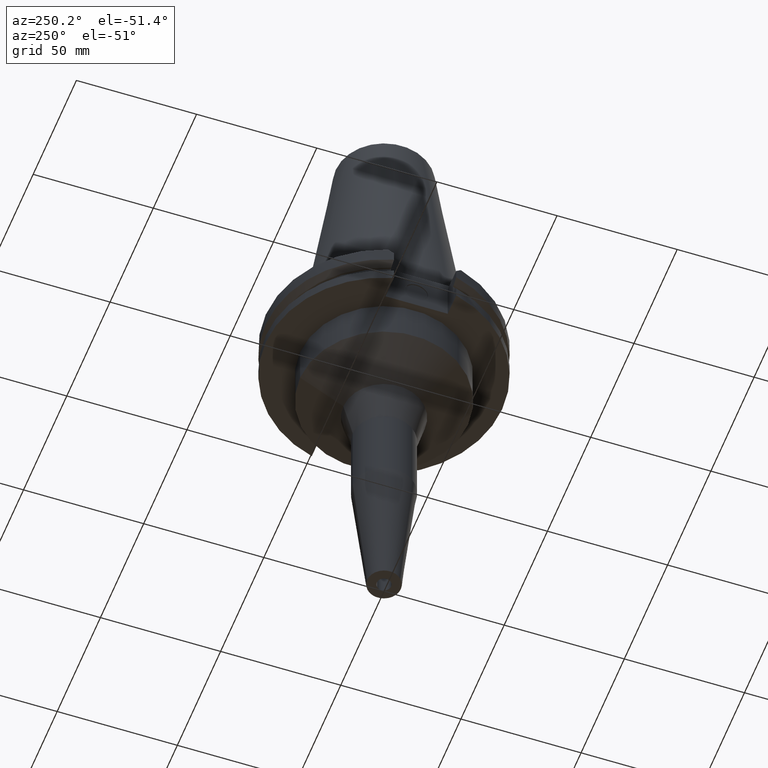
[diagram: clean part render]
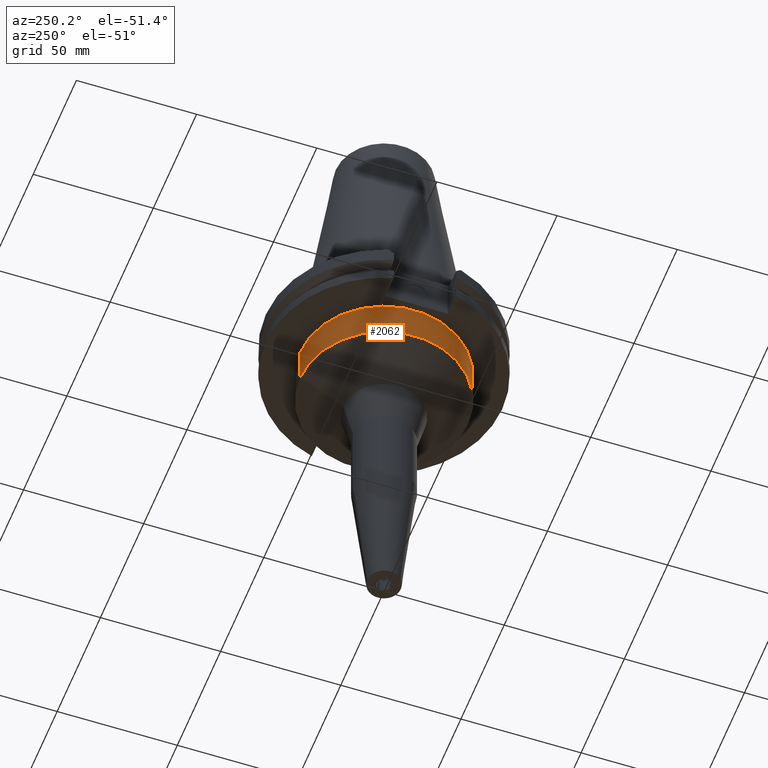
[diagram: same view with one face highlighted and labeled with its STEP entity id]
A machine part, auxiliary view. The second image highlights one B-rep face of the part: STEP entity #2062.
In plain terms, the highlighted cylindrical surface (partial cylindrical patch) has radius 34.925 mm, axis along (0, 0, -1).
Its self-contained STEP definition (entity closure, byte-faithful):
#251=CARTESIAN_POINT('',(0.E0,1.398301715266E-14,-1.905E1));
#252=DIRECTION('',(0.E0,0.E0,-1.E0));
#253=DIRECTION('',(0.E0,-1.E0,0.E0));
#254=AXIS2_PLACEMENT_3D('',#251,#252,#253);
#848=DIRECTION('',(0.E0,5.791257407450E-14,-1.E0));
#849=VECTOR('',#848,1.595E1);
#850=CARTESIAN_POINT('',(0.E0,-3.4925E1,-1.905E1));
#851=LINE('',#850,#849);
#855=DIRECTION('',(0.E0,-5.880353675257E-14,-1.E0));
#856=VECTOR('',#855,1.595E1);
#857=CARTESIAN_POINT('',(0.E0,3.4925E1,-1.905E1));
#858=LINE('',#857,#856);
#877=CARTESIAN_POINT('',(0.E0,0.E0,-3.5E1));
#878=DIRECTION('',(0.E0,0.E0,1.E0));
#879=DIRECTION('',(0.E0,1.E0,0.E0));
#880=AXIS2_PLACEMENT_3D('',#877,#878,#879);
#1306=CARTESIAN_POINT('',(0.E0,3.4925E1,-3.5E1));
#1307=VERTEX_POINT('',#1306);
#1308=CARTESIAN_POINT('',(0.E0,-3.4925E1,-3.5E1));
#1309=VERTEX_POINT('',#1308);
#1310=CARTESIAN_POINT('',(0.E0,3.4925E1,-1.905E1));
#1311=VERTEX_POINT('',#1310);
#1312=CARTESIAN_POINT('',(0.E0,-3.4925E1,-1.905E1));
#1313=VERTEX_POINT('',#1312);
#2048=CARTESIAN_POINT('',(0.E0,1.398301715266E-14,1.1418E2));
#2049=DIRECTION('',(0.E0,0.E0,-1.E0));
#2050=DIRECTION('',(0.E0,-1.E0,0.E0));
#2051=AXIS2_PLACEMENT_3D('',#2048,#2049,#2050);
#2052=CYLINDRICAL_SURFACE('',#2051,3.4925E1);
#2054=ORIENTED_EDGE('',*,*,#2053,.F.);
#2055=ORIENTED_EDGE('',*,*,#1599,.F.);
#2057=ORIENTED_EDGE('',*,*,#2056,.T.);
#2059=ORIENTED_EDGE('',*,*,#2058,.F.);
#2060=EDGE_LOOP('',(#2054,#2055,#2057,#2059));
#2061=FACE_OUTER_BOUND('',#2060,.F.);
#255=CIRCLE('',#254,3.4925E1);
#881=CIRCLE('',#880,3.4925E1);
#1599=EDGE_CURVE('',#1313,#1311,#255,.T.);
#2053=EDGE_CURVE('',#1311,#1307,#858,.T.);
#2056=EDGE_CURVE('',#1313,#1309,#851,.T.);
#2058=EDGE_CURVE('',#1307,#1309,#881,.T.);
#2062=ADVANCED_FACE('',(#2061),#2052,.T.);